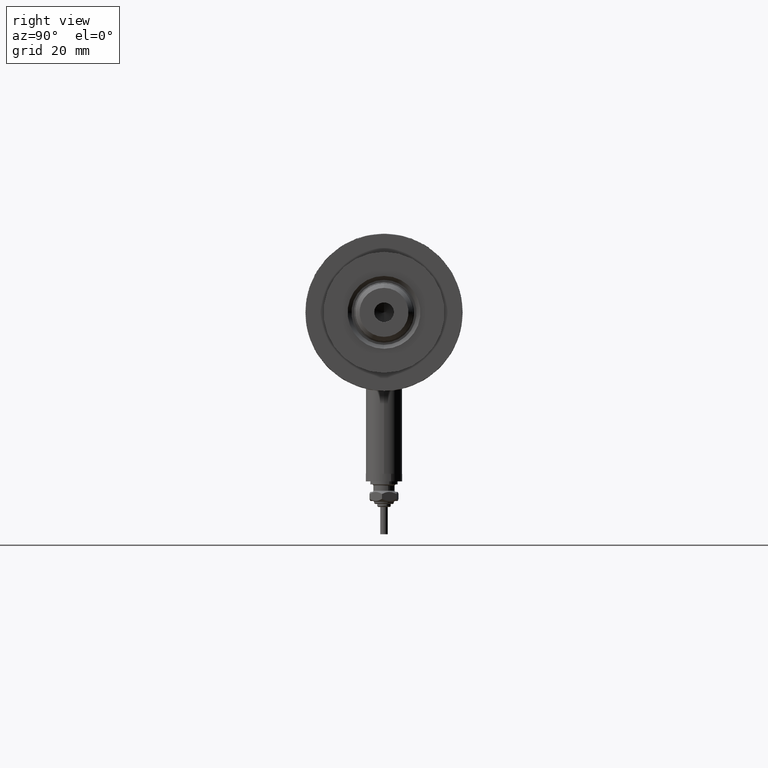
[diagram: clean part render]
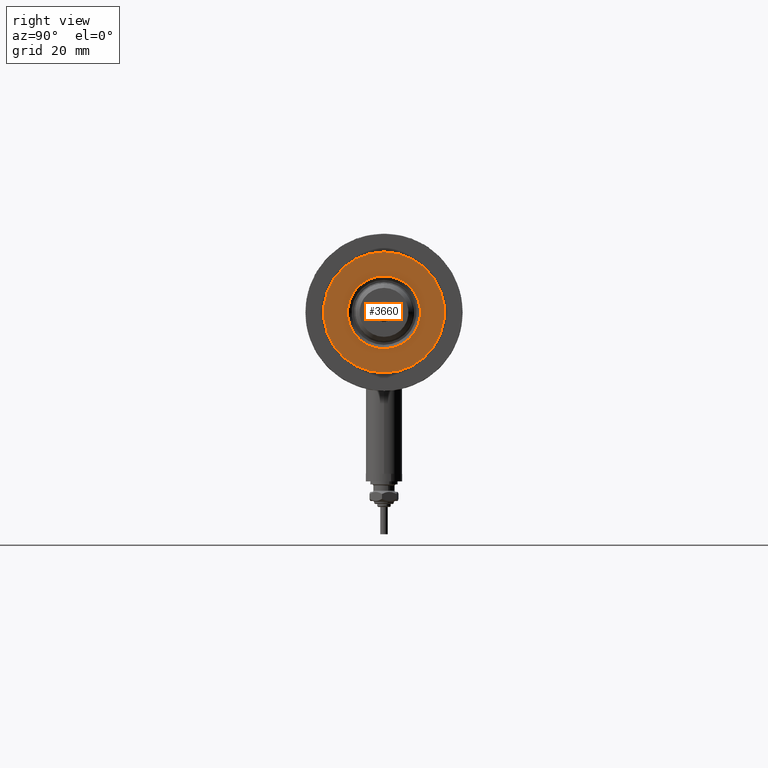
[diagram: same view with one face highlighted and labeled with its STEP entity id]
A machine part, right view. The second image highlights one B-rep face of the part: STEP entity #3660.
In plain terms, the highlighted planar face has unit normal (1, 0, -0).
Its self-contained STEP definition (entity closure, byte-faithful):
#19 = CARTESIAN_POINT ( 'NONE',  ( 0.000000000000000000, 0.000000000000000000, 33.50000000000000000 ) ) ;
#73 = VERTEX_POINT ( 'NONE', #6034 ) ;
#78 = VERTEX_POINT ( 'NONE', #3619 ) ;
#80 = DIRECTION ( 'NONE',  ( -0.000000000000000000, -0.000000000000000000, -1.000000000000000000 ) ) ;
#88 = EDGE_LOOP ( 'NONE', ( #4912, #5859 ) ) ;
#614 = EDGE_CURVE ( 'NONE', #2352, #78, #4024, .T. ) ;
#739 = CARTESIAN_POINT ( 'NONE',  ( 0.000000000000000000, 0.000000000000000000, 33.50000000000000000 ) ) ;
#831 = CARTESIAN_POINT ( 'NONE',  ( -19.99999999999999645, 0.000000000000000000, 33.50000000000000000 ) ) ;
#844 = EDGE_CURVE ( 'NONE', #73, #5021, #5862, .T. ) ;
#928 = EDGE_CURVE ( 'NONE', #78, #2352, #2581, .T. ) ;
#1076 = FACE_BOUND ( 'NONE', #88, .T. ) ;
#1609 = DIRECTION ( 'NONE',  ( 0.000000000000000000, 0.000000000000000000, 1.000000000000000000 ) ) ;
#2019 = DIRECTION ( 'NONE',  ( 1.000000000000000000, 0.000000000000000000, -0.000000000000000000 ) ) ;
#2044 = FACE_OUTER_BOUND ( 'NONE', #2376, .T. ) ;
#2046 = DIRECTION ( 'NONE',  ( 1.000000000000000000, 0.000000000000000000, 0.000000000000000000 ) ) ;
#2091 = DIRECTION ( 'NONE',  ( -0.000000000000000000, -0.000000000000000000, -1.000000000000000000 ) ) ;
#2352 = VERTEX_POINT ( 'NONE', #2455 ) ;
#2376 = EDGE_LOOP ( 'NONE', ( #4388, #5310 ) ) ;
#2455 = CARTESIAN_POINT ( 'NONE',  ( 12.05000000000000426, 0.000000000000000000, 33.50000000000000000 ) ) ;
#2516 = DIRECTION ( 'NONE',  ( 1.000000000000000000, 0.000000000000000000, 0.000000000000000000 ) ) ;
#2581 = CIRCLE ( 'NONE', #5562, 12.05000000000000426 ) ;
#2786 = AXIS2_PLACEMENT_3D ( 'NONE', #4444, #3447, #2516 ) ;
#3034 = AXIS2_PLACEMENT_3D ( 'NONE', #19, #5460, #2046 ) ;
#3119 = AXIS2_PLACEMENT_3D ( 'NONE', #5937, #1609, #2019 ) ;
#3447 = DIRECTION ( 'NONE',  ( 0.000000000000000000, 0.000000000000000000, 1.000000000000000000 ) ) ;
#3619 = CARTESIAN_POINT ( 'NONE',  ( -12.05000000000000426, 1.475699392972560823E-15, 33.50000000000000000 ) ) ;
#3660 = ADVANCED_FACE ( 'NONE', ( #1076, #2044 ), #4495, .T. ) ;
#3824 = AXIS2_PLACEMENT_3D ( 'NONE', #4421, #80, #5355 ) ;
#4024 = CIRCLE ( 'NONE', #3824, 12.05000000000000426 ) ;
#4388 = ORIENTED_EDGE ( 'NONE', *, *, #5215, .T. ) ;
#4421 = CARTESIAN_POINT ( 'NONE',  ( 0.000000000000000000, 0.000000000000000000, 33.50000000000000000 ) ) ;
#4444 = CARTESIAN_POINT ( 'NONE',  ( 0.000000000000000000, 0.000000000000000000, 33.50000000000000000 ) ) ;
#4495 = PLANE ( 'NONE',  #3119 ) ;
#4912 = ORIENTED_EDGE ( 'NONE', *, *, #614, .T. ) ;
#5021 = VERTEX_POINT ( 'NONE', #831 ) ;
#5072 = CIRCLE ( 'NONE', #3034, 19.99999999999999645 ) ;
#5215 = EDGE_CURVE ( 'NONE', #5021, #73, #5072, .T. ) ;
#5310 = ORIENTED_EDGE ( 'NONE', *, *, #844, .T. ) ;
#5355 = DIRECTION ( 'NONE',  ( 1.000000000000000000, 0.000000000000000000, 0.000000000000000000 ) ) ;
#5460 = DIRECTION ( 'NONE',  ( 0.000000000000000000, 0.000000000000000000, 1.000000000000000000 ) ) ;
#5562 = AXIS2_PLACEMENT_3D ( 'NONE', #739, #2091, #5634 ) ;
#5634 = DIRECTION ( 'NONE',  ( 1.000000000000000000, 0.000000000000000000, 0.000000000000000000 ) ) ;
#5859 = ORIENTED_EDGE ( 'NONE', *, *, #928, .T. ) ;
#5862 = CIRCLE ( 'NONE', #2786, 19.99999999999999645 ) ;
#5937 = CARTESIAN_POINT ( 'NONE',  ( 0.000000000000000000, 0.000000000000000000, 33.50000000000000000 ) ) ;
#6034 = CARTESIAN_POINT ( 'NONE',  ( 19.99999999999999645, 2.449293598294706119E-15, 33.50000000000000000 ) ) ;